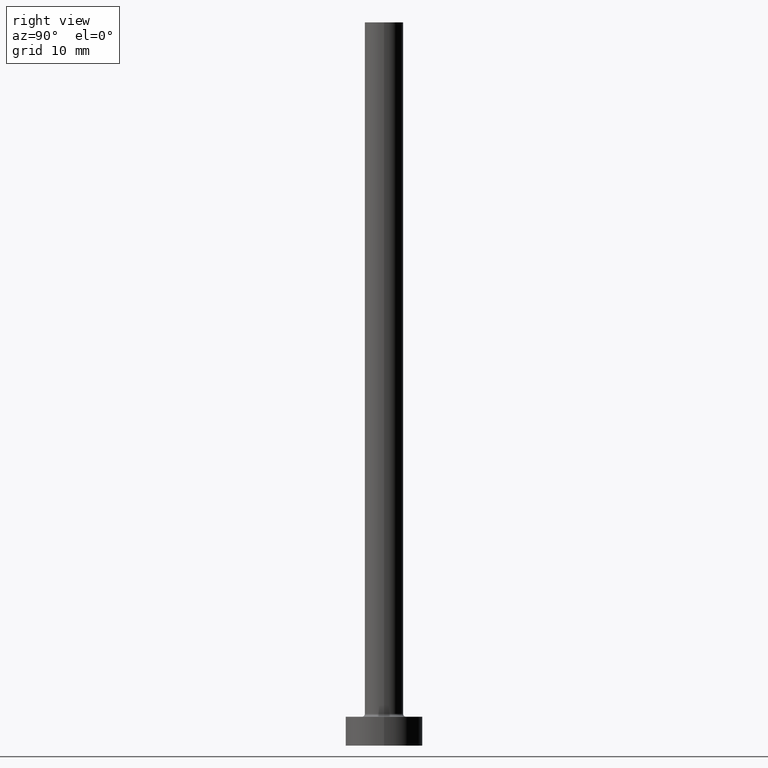
[diagram: clean part render]
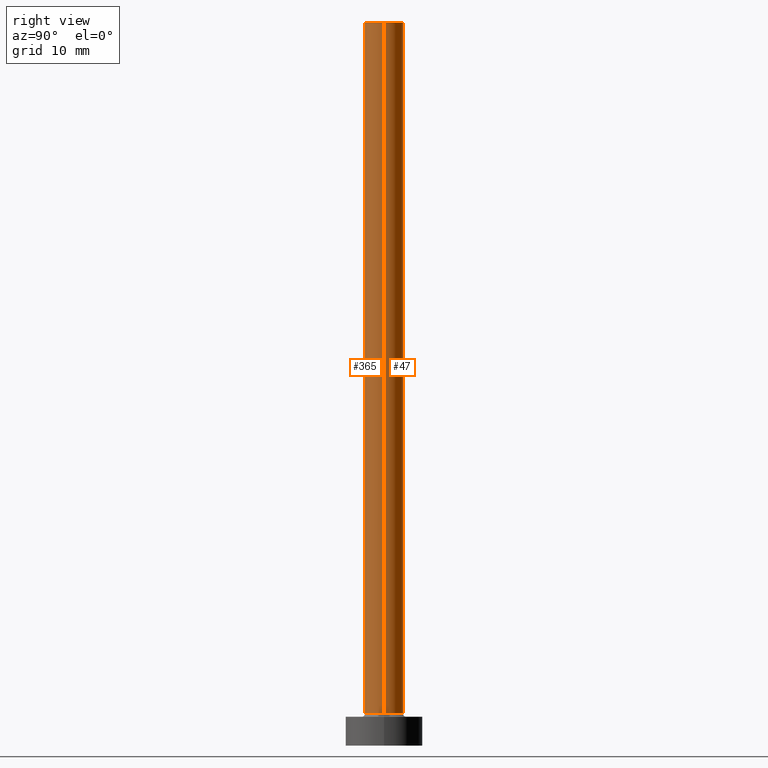
[diagram: same view with one multi-face feature highlighted, each face labeled with its STEP entity id]
A machine part, right view. The highlighted faces form ONE feature: a constant-radius fillet chain: 2 tangent blend faces with common blend radius 2 mm. The faces share edges in the B-rep.
Their STEP definitions:
[1] entity #47 (Cylinder):
#25 = EDGE_CURVE ( 'NONE', #134, #394, #147, .T. ) ;
#26 = VERTEX_POINT ( 'NONE', #72 ) ;
#31 = CIRCLE ( 'NONE', #70, 2.000000000000000000 ) ;
#41 = CYLINDRICAL_SURFACE ( 'NONE', #422, 2.000000000000000000 ) ;
#46 = DIRECTION ( 'NONE',  ( 1.000000000000000000, 0.000000000000000000, 0.000000000000000000 ) ) ;
#47 = ADVANCED_FACE ( 'NONE', ( #224 ), #41, .T. ) ;
#51 = LINE ( 'NONE', #409, #283 ) ;
#70 = AXIS2_PLACEMENT_3D ( 'NONE', #342, #257, #46 ) ;
#72 = CARTESIAN_POINT ( 'NONE',  ( 2.000000000000000000, 2.449293598294706414E-16, 75.00000000000001421 ) ) ;
#114 = DIRECTION ( 'NONE',  ( -0.000000000000000000, -0.000000000000000000, -1.000000000000000000 ) ) ;
#134 = VERTEX_POINT ( 'NONE', #397 ) ;
#136 = VECTOR ( 'NONE', #313, 1000.000000000000000 ) ;
#147 = CIRCLE ( 'NONE', #351, 2.000000000000000000 ) ;
#155 = DIRECTION ( 'NONE',  ( 1.000000000000000000, 0.000000000000000000, 0.000000000000000000 ) ) ;
#162 = LINE ( 'NONE', #376, #136 ) ;
#166 = ORIENTED_EDGE ( 'NONE', *, *, #433, .F. ) ;
#193 = CARTESIAN_POINT ( 'NONE',  ( -2.000000000000000000, 0.000000000000000000, 3.299999999999997158 ) ) ;
#221 = EDGE_CURVE ( 'NONE', #26, #134, #162, .T. ) ;
#224 = FACE_OUTER_BOUND ( 'NONE', #246, .T. ) ;
#243 = VERTEX_POINT ( 'NONE', #270 ) ;
#246 = EDGE_LOOP ( 'NONE', ( #166, #381, #285, #346 ) ) ;
#256 = DIRECTION ( 'NONE',  ( -0.000000000000000000, -0.000000000000000000, -1.000000000000000000 ) ) ;
#257 = DIRECTION ( 'NONE',  ( 0.000000000000000000, 0.000000000000000000, 1.000000000000000000 ) ) ;
#266 = DIRECTION ( 'NONE',  ( 0.000000000000000000, 0.000000000000000000, 1.000000000000000000 ) ) ;
#270 = CARTESIAN_POINT ( 'NONE',  ( -2.000000000000000000, 0.000000000000000000, 75.00000000000001421 ) ) ;
#283 = VECTOR ( 'NONE', #114, 1000.000000000000000 ) ;
#285 = ORIENTED_EDGE ( 'NONE', *, *, #25, .T. ) ;
#313 = DIRECTION ( 'NONE',  ( -0.000000000000000000, -0.000000000000000000, -1.000000000000000000 ) ) ;
#330 = CARTESIAN_POINT ( 'NONE',  ( 0.000000000000000000, 0.000000000000000000, 75.00000000000001421 ) ) ;
#342 = CARTESIAN_POINT ( 'NONE',  ( 0.000000000000000000, 0.000000000000000000, 75.00000000000001421 ) ) ;
#346 = ORIENTED_EDGE ( 'NONE', *, *, #404, .F. ) ;
#351 = AXIS2_PLACEMENT_3D ( 'NONE', #362, #266, #155 ) ;
#362 = CARTESIAN_POINT ( 'NONE',  ( 0.000000000000000000, 0.000000000000000000, 3.299999999999997158 ) ) ;
#376 = CARTESIAN_POINT ( 'NONE',  ( 2.000000000000000000, 2.449293598294706414E-16, 75.00000000000001421 ) ) ;
#381 = ORIENTED_EDGE ( 'NONE', *, *, #221, .T. ) ;
#394 = VERTEX_POINT ( 'NONE', #193 ) ;
#397 = CARTESIAN_POINT ( 'NONE',  ( 2.000000000000000000, 2.449293598294706414E-16, 3.299999999999997158 ) ) ;
#403 = DIRECTION ( 'NONE',  ( -1.000000000000000000, 0.000000000000000000, 0.000000000000000000 ) ) ;
#404 = EDGE_CURVE ( 'NONE', #243, #394, #51, .T. ) ;
#409 = CARTESIAN_POINT ( 'NONE',  ( -2.000000000000000000, 0.000000000000000000, 75.00000000000001421 ) ) ;
#422 = AXIS2_PLACEMENT_3D ( 'NONE', #330, #256, #403 ) ;
#433 = EDGE_CURVE ( 'NONE', #26, #243, #31, .T. ) ;
[2] entity #365 (Cylinder):
#14 = CARTESIAN_POINT ( 'NONE',  ( 0.000000000000000000, 0.000000000000000000, 3.299999999999997158 ) ) ;
#26 = VERTEX_POINT ( 'NONE', #72 ) ;
#40 = CARTESIAN_POINT ( 'NONE',  ( 0.000000000000000000, 0.000000000000000000, 75.00000000000001421 ) ) ;
#51 = LINE ( 'NONE', #409, #283 ) ;
#72 = CARTESIAN_POINT ( 'NONE',  ( 2.000000000000000000, 2.449293598294706414E-16, 75.00000000000001421 ) ) ;
#96 = EDGE_CURVE ( 'NONE', #394, #134, #217, .T. ) ;
#114 = DIRECTION ( 'NONE',  ( -0.000000000000000000, -0.000000000000000000, -1.000000000000000000 ) ) ;
#123 = AXIS2_PLACEMENT_3D ( 'NONE', #40, #338, #298 ) ;
#134 = VERTEX_POINT ( 'NONE', #397 ) ;
#136 = VECTOR ( 'NONE', #313, 1000.000000000000000 ) ;
#162 = LINE ( 'NONE', #376, #136 ) ;
#174 = EDGE_CURVE ( 'NONE', #243, #26, #289, .T. ) ;
#189 = EDGE_LOOP ( 'NONE', ( #415, #423, #284, #334 ) ) ;
#190 = FACE_OUTER_BOUND ( 'NONE', #189, .T. ) ;
#193 = CARTESIAN_POINT ( 'NONE',  ( -2.000000000000000000, 0.000000000000000000, 3.299999999999997158 ) ) ;
#195 = CARTESIAN_POINT ( 'NONE',  ( 0.000000000000000000, 0.000000000000000000, 75.00000000000001421 ) ) ;
#204 = AXIS2_PLACEMENT_3D ( 'NONE', #195, #349, #277 ) ;
#216 = DIRECTION ( 'NONE',  ( 1.000000000000000000, 0.000000000000000000, 0.000000000000000000 ) ) ;
#217 = CIRCLE ( 'NONE', #297, 2.000000000000000000 ) ;
#221 = EDGE_CURVE ( 'NONE', #26, #134, #162, .T. ) ;
#243 = VERTEX_POINT ( 'NONE', #270 ) ;
#270 = CARTESIAN_POINT ( 'NONE',  ( -2.000000000000000000, 0.000000000000000000, 75.00000000000001421 ) ) ;
#277 = DIRECTION ( 'NONE',  ( 1.000000000000000000, 0.000000000000000000, 0.000000000000000000 ) ) ;
#283 = VECTOR ( 'NONE', #114, 1000.000000000000000 ) ;
#284 = ORIENTED_EDGE ( 'NONE', *, *, #404, .T. ) ;
#289 = CIRCLE ( 'NONE', #204, 2.000000000000000000 ) ;
#297 = AXIS2_PLACEMENT_3D ( 'NONE', #14, #368, #216 ) ;
#298 = DIRECTION ( 'NONE',  ( -1.000000000000000000, 0.000000000000000000, 0.000000000000000000 ) ) ;
#313 = DIRECTION ( 'NONE',  ( -0.000000000000000000, -0.000000000000000000, -1.000000000000000000 ) ) ;
#334 = ORIENTED_EDGE ( 'NONE', *, *, #96, .T. ) ;
#338 = DIRECTION ( 'NONE',  ( -0.000000000000000000, -0.000000000000000000, -1.000000000000000000 ) ) ;
#349 = DIRECTION ( 'NONE',  ( 0.000000000000000000, 0.000000000000000000, 1.000000000000000000 ) ) ;
#365 = ADVANCED_FACE ( 'NONE', ( #190 ), #442, .T. ) ;
#368 = DIRECTION ( 'NONE',  ( 0.000000000000000000, 0.000000000000000000, 1.000000000000000000 ) ) ;
#376 = CARTESIAN_POINT ( 'NONE',  ( 2.000000000000000000, 2.449293598294706414E-16, 75.00000000000001421 ) ) ;
#394 = VERTEX_POINT ( 'NONE', #193 ) ;
#397 = CARTESIAN_POINT ( 'NONE',  ( 2.000000000000000000, 2.449293598294706414E-16, 3.299999999999997158 ) ) ;
#404 = EDGE_CURVE ( 'NONE', #243, #394, #51, .T. ) ;
#409 = CARTESIAN_POINT ( 'NONE',  ( -2.000000000000000000, 0.000000000000000000, 75.00000000000001421 ) ) ;
#415 = ORIENTED_EDGE ( 'NONE', *, *, #221, .F. ) ;
#423 = ORIENTED_EDGE ( 'NONE', *, *, #174, .F. ) ;
#442 = CYLINDRICAL_SURFACE ( 'NONE', #123, 2.000000000000000000 ) ;